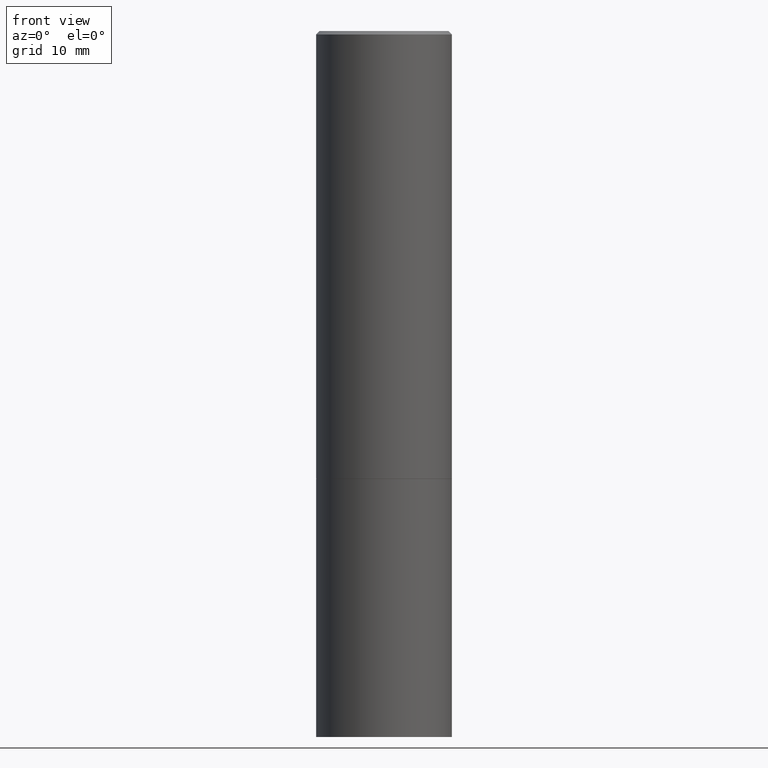
[diagram: clean part render]
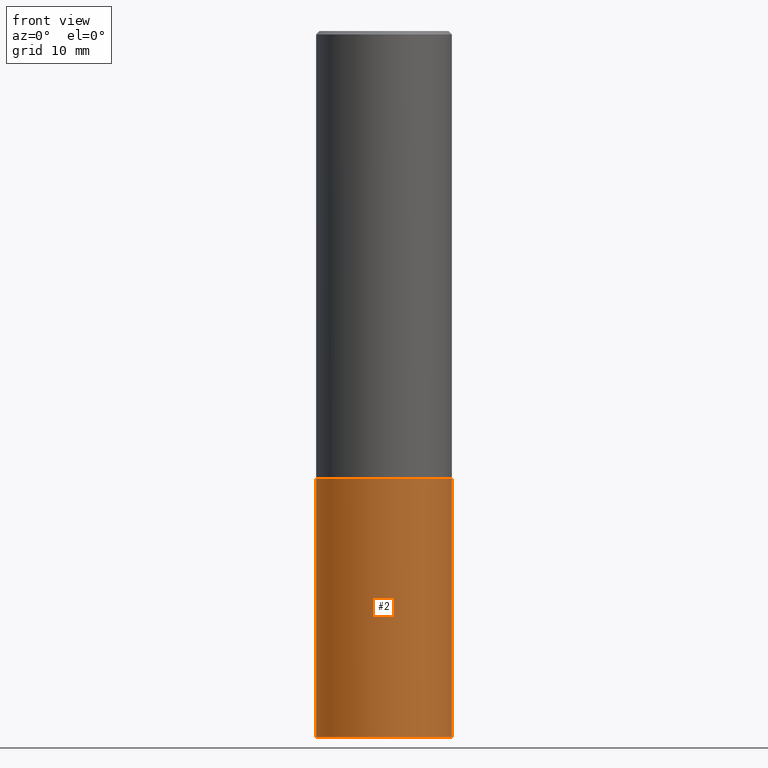
[diagram: same view with one face highlighted and labeled with its STEP entity id]
A machine part, front view. The second image highlights one B-rep face of the part: STEP entity #2.
In plain terms, the highlighted cylindrical surface (partial cylindrical patch) has radius 10 mm, axis along (-0, 0, 1).
Its self-contained STEP definition (entity closure, byte-faithful):
#2 = ADVANCED_FACE ( 'NONE', ( #48 ), #5, .T. ) ;
#5 = CYLINDRICAL_SURFACE ( 'NONE', #338, 0.3937000000000000499 ) ;
#13 = DIRECTION ( 'NONE',  ( 1.000000000000000000, -6.982962677686265922E-15, 4.876176775795935793E-29 ) ) ;
#19 = CARTESIAN_POINT ( 'NONE',  ( -0.3937000000000000499, -8.886660975684131482E-15, -4.094500000000000028 ) ) ;
#48 = FACE_OUTER_BOUND ( 'NONE', #269, .T. ) ;
#60 = AXIS2_PLACEMENT_3D ( 'NONE', #77, #323, #352 ) ;
#62 = CARTESIAN_POINT ( 'NONE',  ( 0.3937000000000000499, -1.182145751705511584E-14, -2.598400000000000265 ) ) ;
#70 = CIRCLE ( 'NONE', #60, 0.3937000000000000499 ) ;
#75 = EDGE_CURVE ( 'NONE', #329, #320, #324, .T. ) ;
#77 = CARTESIAN_POINT ( 'NONE',  ( 6.354306145991459756E-29, -9.072265110850031044E-15, -2.598400000000000265 ) ) ;
#97 = CARTESIAN_POINT ( 'NONE',  ( -0.3937000000000000499, 2.797406750687514786E-15, -1.936584745033356735E-29 ) ) ;
#108 = CARTESIAN_POINT ( 'NONE',  ( 1.001297202692504215E-28, -1.429587034189326149E-14, -4.094500000000000028 ) ) ;
#112 = EDGE_CURVE ( 'NONE', #320, #177, #281, .T. ) ;
#117 = ORIENTED_EDGE ( 'NONE', *, *, #142, .F. ) ;
#127 = CARTESIAN_POINT ( 'NONE',  ( -0.3937000000000000499, -8.886660975684131482E-15, -2.598400000000000265 ) ) ;
#131 = VERTEX_POINT ( 'NONE', #127 ) ;
#140 = DIRECTION ( 'NONE',  ( 1.000000000000000000, -6.982962677686267499E-15, 0.000000000000000000 ) ) ;
#142 = EDGE_CURVE ( 'NONE', #329, #131, #233, .T. ) ;
#170 = DIRECTION ( 'NONE',  ( -2.445468806185136597E-29, 3.491481338843145583E-15, 1.000000000000000000 ) ) ;
#177 = VERTEX_POINT ( 'NONE', #62 ) ;
#199 = ORIENTED_EDGE ( 'NONE', *, *, #112, .T. ) ;
#208 = DIRECTION ( 'NONE',  ( -2.445468806185136877E-29, 3.491481338843145188E-15, 1.000000000000000000 ) ) ;
#209 = CARTESIAN_POINT ( 'NONE',  ( 0.3937000000000000499, -2.749192406205083217E-15, 1.919750796630860172E-29 ) ) ;
#233 = LINE ( 'NONE', #97, #343 ) ;
#240 = CARTESIAN_POINT ( 'NONE',  ( 0.3937000000000000499, -1.704506274809834471E-14, -4.094500000000000028 ) ) ;
#263 = AXIS2_PLACEMENT_3D ( 'NONE', #108, #170, #140 ) ;
#269 = EDGE_LOOP ( 'NONE', ( #117, #351, #199, #302 ) ) ;
#275 = VECTOR ( 'NONE', #337, 39.37007874015748143 ) ;
#281 = LINE ( 'NONE', #209, #275 ) ;
#282 = CARTESIAN_POINT ( 'NONE',  ( 0.000000000000000000, 0.000000000000000000, 0.000000000000000000 ) ) ;
#302 = ORIENTED_EDGE ( 'NONE', *, *, #345, .F. ) ;
#320 = VERTEX_POINT ( 'NONE', #240 ) ;
#323 = DIRECTION ( 'NONE',  ( -2.445468806185136597E-29, 3.491481338843145583E-15, 1.000000000000000000 ) ) ;
#324 = CIRCLE ( 'NONE', #263, 0.3937000000000000499 ) ;
#329 = VERTEX_POINT ( 'NONE', #19 ) ;
#337 = DIRECTION ( 'NONE',  ( -2.445468806185136877E-29, 3.491481338843145188E-15, 1.000000000000000000 ) ) ;
#338 = AXIS2_PLACEMENT_3D ( 'NONE', #282, #346, #13 ) ;
#343 = VECTOR ( 'NONE', #208, 39.37007874015748143 ) ;
#345 = EDGE_CURVE ( 'NONE', #131, #177, #70, .T. ) ;
#346 = DIRECTION ( 'NONE',  ( -2.445468806185136597E-29, 3.491481338843145583E-15, 1.000000000000000000 ) ) ;
#351 = ORIENTED_EDGE ( 'NONE', *, *, #75, .T. ) ;
#352 = DIRECTION ( 'NONE',  ( 1.000000000000000000, -6.982962677686267499E-15, 0.000000000000000000 ) ) ;